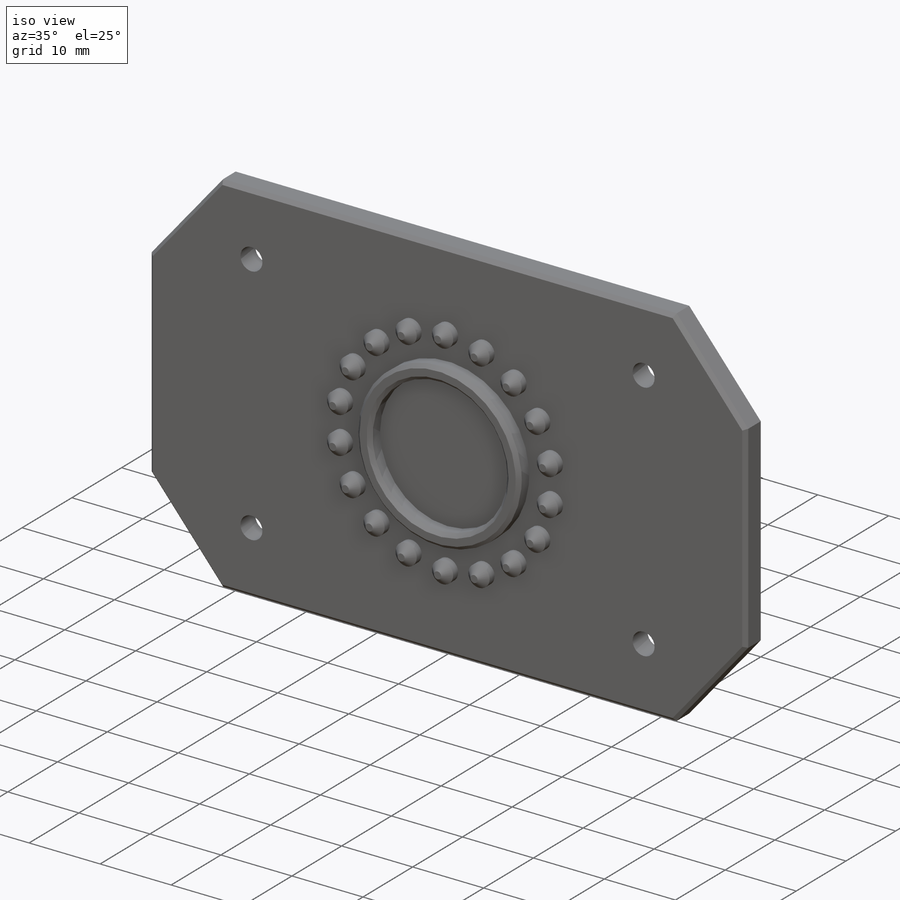
[diagram: iso view]
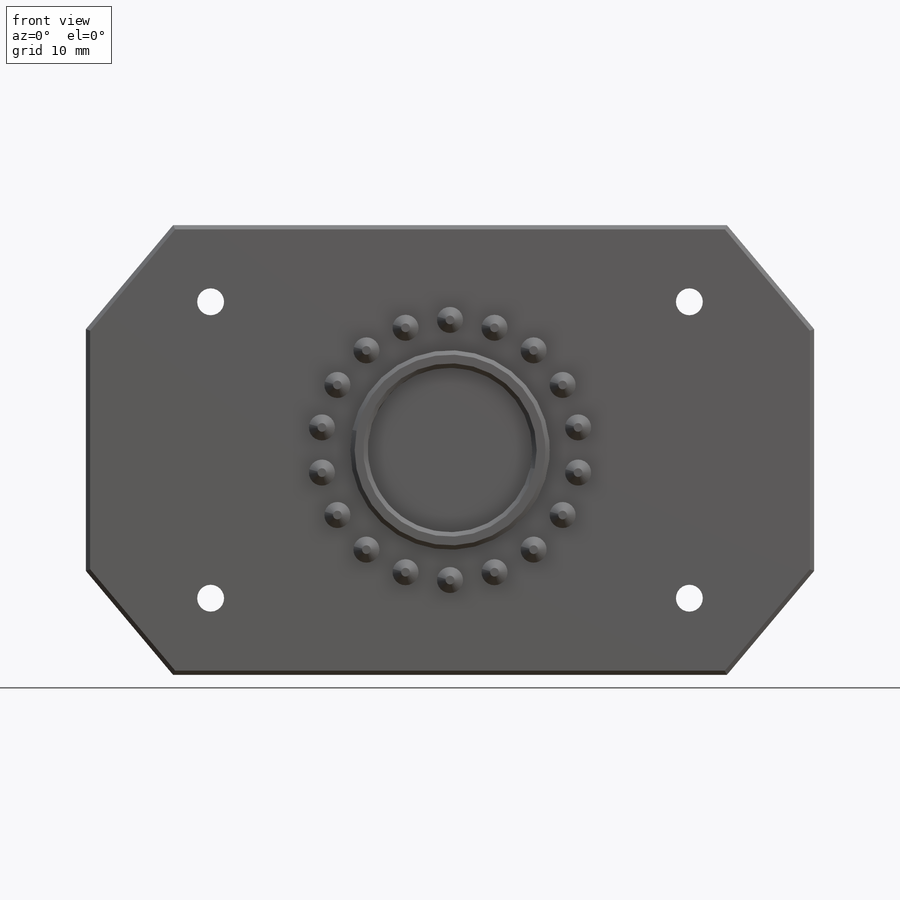
[diagram: front view]
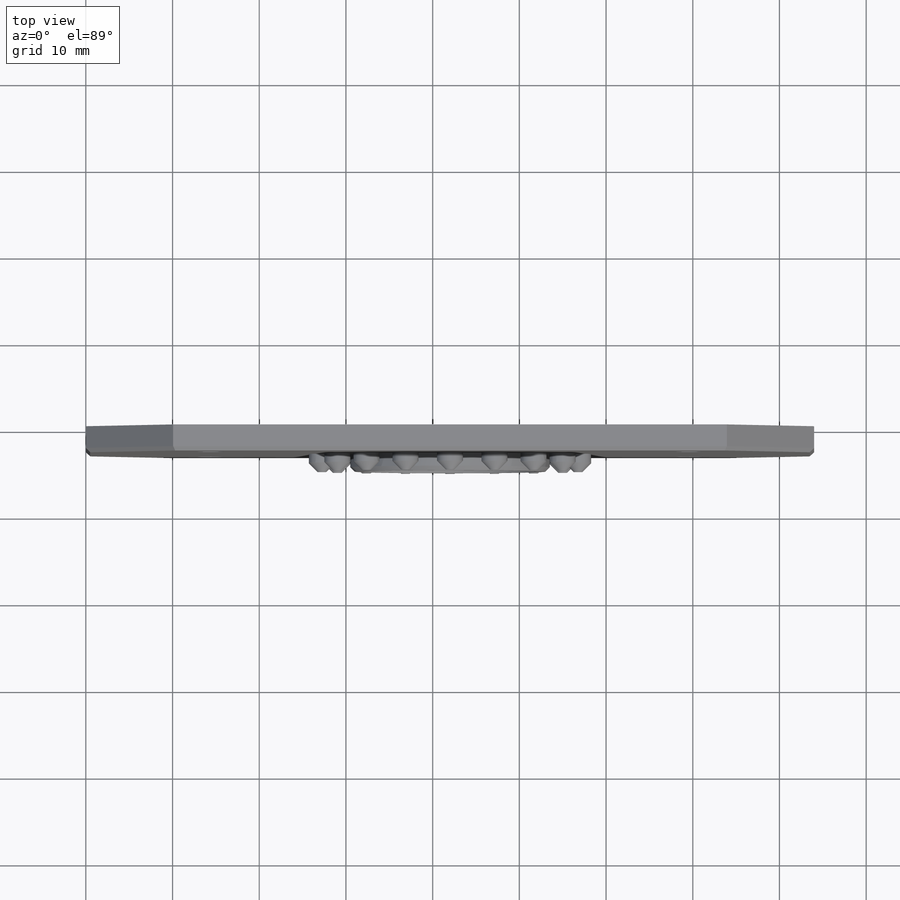
[diagram: top view]
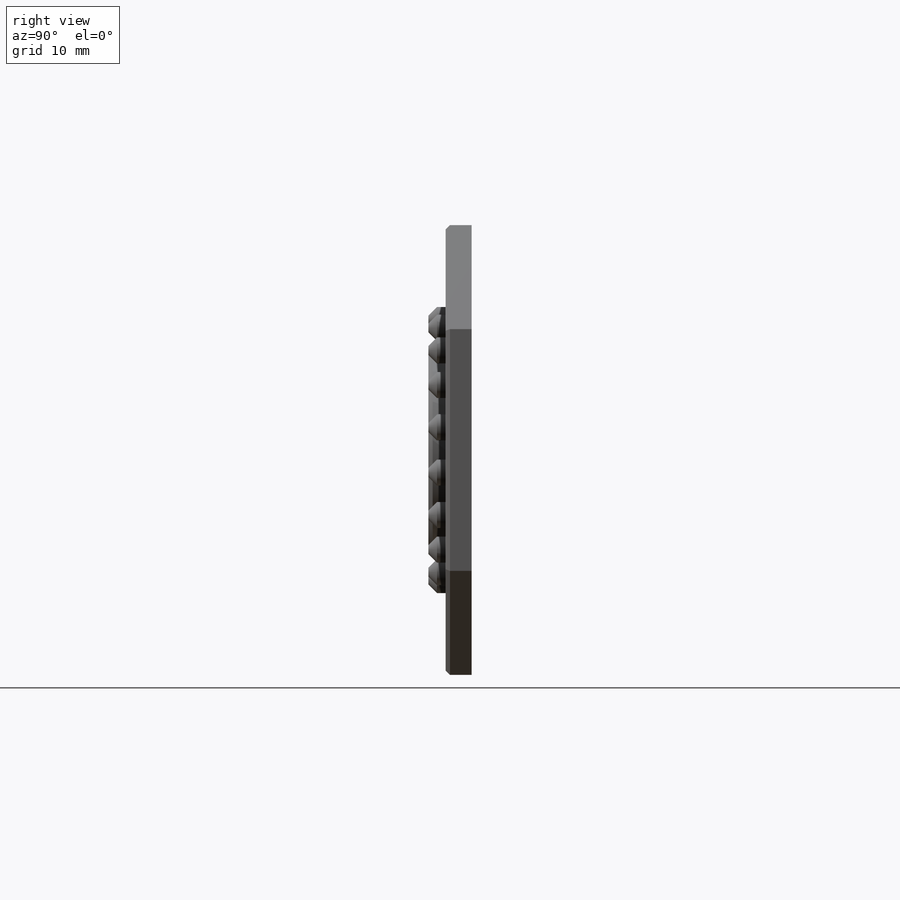
[diagram: right view]
SOLIDWORKS PART (.sldprt)
format: sldprt  version: not decoded by parser v0  size: 396,288 bytes
history: native  units: mm
features: sketch x4, extrude x3, chamfer x3, material x1, cut_extrude x1 (+13 scaffold rows collapsed)
feature tree (25):
  scaffold x13  (default folders/planes/origin — collapsed)
  material  "Material <not specified>"
  sketch  "Sketch1"  dims[D1=~63.861609mm]
  extrude  "Boss-Extrude1"  Depth=3mm
  chamfer  "Chamfer1"  Distance=0.5mm Angle=45deg
  sketch  "Sketch2"
  cut_extrude  "Cut-Extrude1"  [1 undecoded]
  sketch  "Sketch3"  dims[D4=3.0mm D3=15.0mm D1=0.0mm D2=0.0mm D5=18.0]
  extrude  "Boss-Extrude2"  Depth=2mm
  chamfer  "Chamfer2"  Distance=1mm
  sketch  "Sketch4"  dims[D21=2.0mm D1=0.0mm D2=0.0mm D3=0.0mm D4=0.0mm D5=0.0mm D6=0.0mm D7=0.0mm D8=0.0mm D9=0.0mm D10=0.0mm D11=0.0mm D12=0.0mm D13=0.0mm D14=0.0mm D15=0.0mm D16=0.0mm D17=0.0mm D18=0.0mm D19=0.0mm D20=0.0mm]
  extrude  "Boss-Extrude3"  Depth=2mm
  chamfer  "Chamfer3"  Distance=0.5mm
decode coverage: 9 of 11 modeling features carry decoded parameters
note: ~ marks probable driven/reference dimensions
note: 1 parameter value undecoded
note: suppression state not decoded; provenance and decode notes live in map.json
